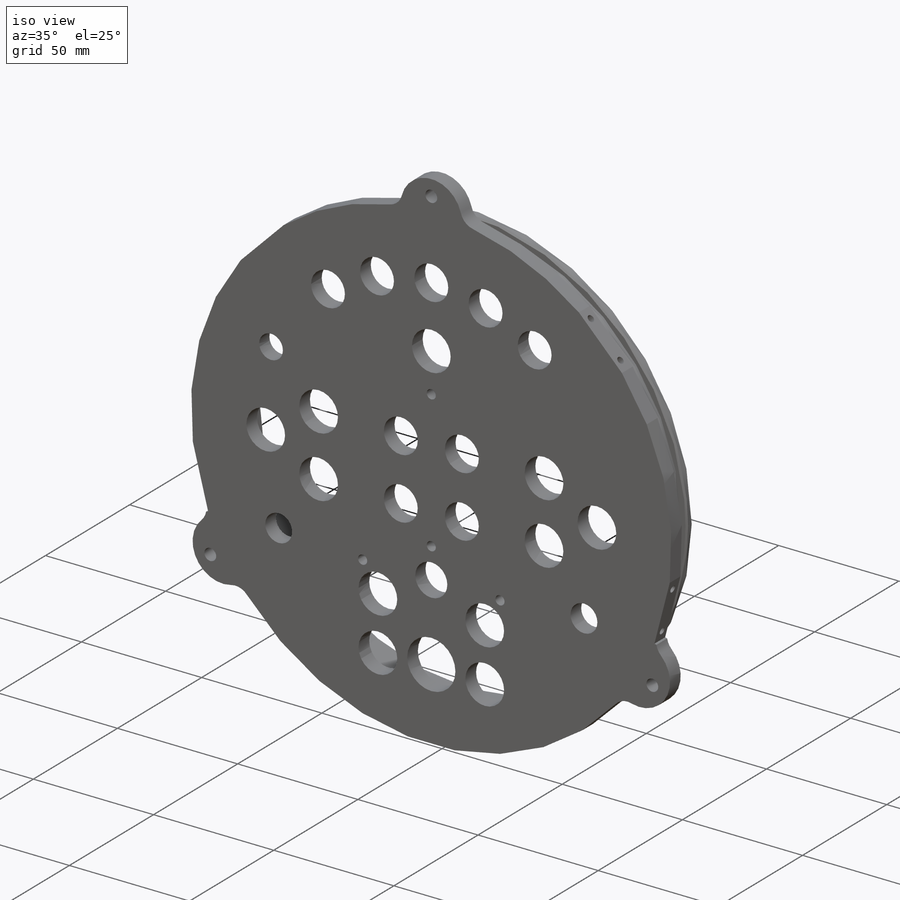
[diagram: iso view]
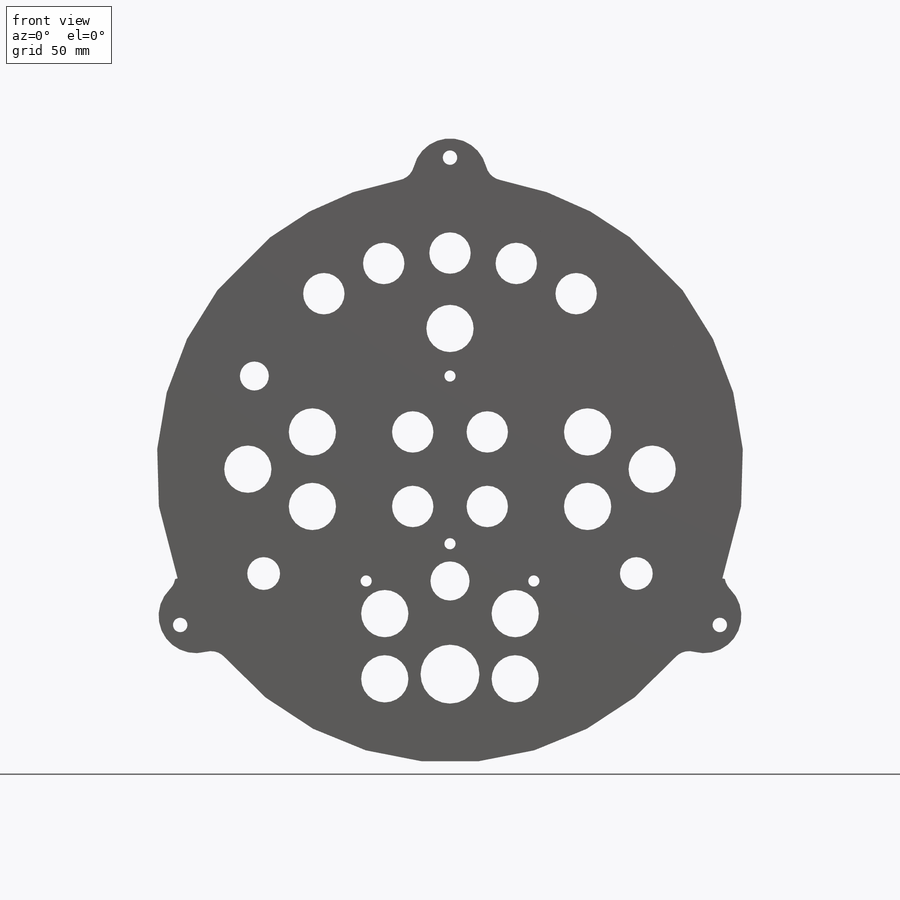
[diagram: front view]
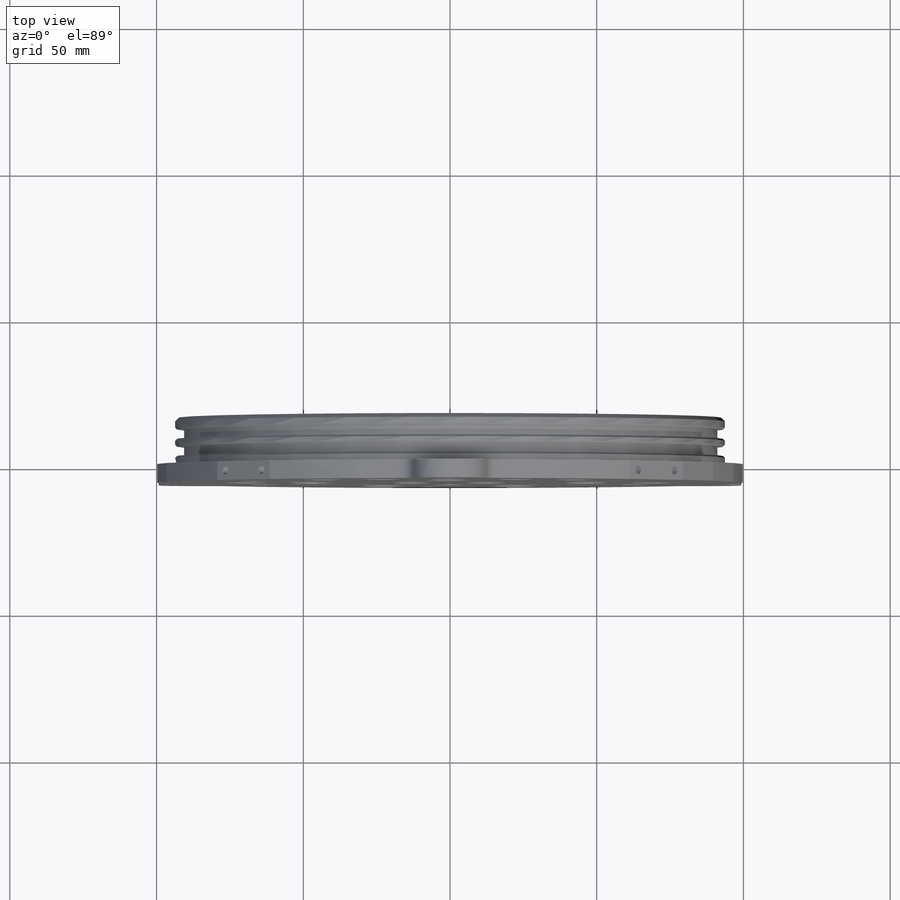
[diagram: top view]
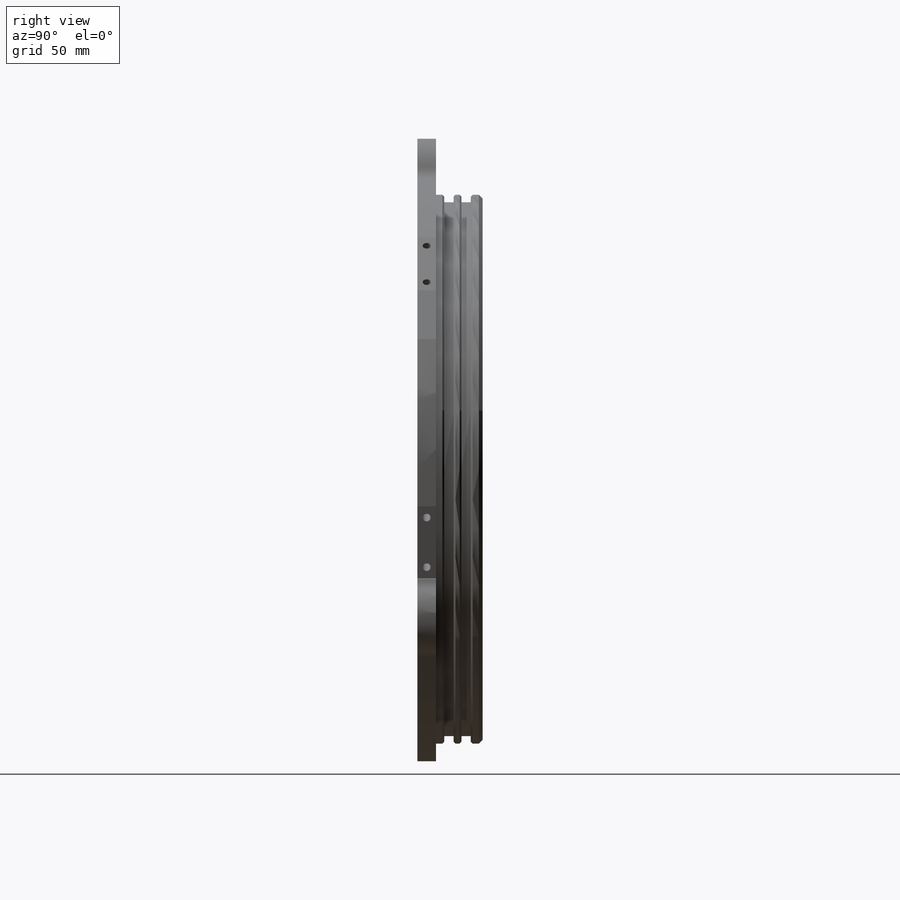
[diagram: right view]
SOLIDWORKS PART (.sldprt)
format: sldprt  version: not decoded by parser v0  size: 862,208 bytes
history: native  units: mm
features: sketch x26, hole x7, cut_extrude x6, extrude x3, chamfer x2, material x1, cut_revolve x1, fillet x1 (+11 scaffold rows collapsed)
feature tree (58):
  scaffold x11  (default folders/planes/origin — collapsed)
  material  "6061 Alloy"
  sketch  "Sketch1"  dims[D1=98.425mm]
  extrude  "Extrude1"  Depth=6.35mm
  sketch  "Sketch2"  dims[D1=88.9mm]
  extrude  "Extrude2"  Depth=15.875mm
  sketch  "Sketch3"  dims[D1=82.55mm]
  cut_extrude  "Cut-Extrude1"  Depth=15.875mm
  sketch  "Sketch4"  dims[D1=2.54mm D2=3.175mm]
  cut_revolve  "Cut-Revolve1"  Angle=360deg
  chamfer  "Chamfer1"  Distance=1.27mm Angle=45deg
  sketch  "Sketch5"  dims[c1.D1=~10.110031mm c1.D3=~8.083123mm c1.D5=~4.356395mm c2.D3=7.05mm c2.D1=50.8mm c2.D2=50.8mm c3.D3=38.1mm c3.D4=38.1mm c3.D5=38.1mm c3.D6=38.1mm c3.D1=31.75mm c3.D2=31.75mm c4.D3=31.75mm c4.D4=31.75mm c4.D2=31.75mm c5.D3=31.75mm c5.D2=31.75mm c5.D5=25.4mm c5.D6=25.4mm c5.D7=25.4mm c6.D5=25.4mm c6.D6=25.4mm c6.D8=25.4mm c6.D9=10.16mm c6.D2=57.15mm c6.D3=25.4mm c7.D5=57.15mm c7.D7=63.5mm c7.D8=79.375mm c7.D9=0.0deg c8.D9=31.75mm c8.D10=31.75mm c8.D11=~138.065664mm c9.D11=~179.835115deg c10.D11=31.75mm c10.D12=31.75mm c10.D1=63.5mm c10.D2=63.5mm c10.D3=73.66mm c10.D4=73.66mm c10.D5=35.56mm c10.D6=35.56mm]
  sketch  "Sketch7"
  sketch  "Sketch8"  dims[c1.D1=12.7mm c1.D2=12.7mm c1.D3=12.7mm c2.D1=30.0deg c2.D4=~86.562005mm c3.D4=120.0deg c3.D5=~86.562005mm c4.D5=120.0deg]
  extrude  "Extrude3"  [1 undecoded]
  sketch  "Sketch10"  dims[D1=30.0deg]
  cut_extrude  "Cut-Extrude2"  [1 undecoded]
  hole  "#10 (0.1935) Diameter Hole1"  Diameter=4.9149mm Depth=330.2mm
  sketch  "3DSketch2"  dims[D1=106.3625mm D2=106.3625mm D3=106.3625mm]
  sketch  "Sketch11"  dims[hole-wizard template sketch: 47 standard entries collapsed; hole parameters kept: c15.Hole Depth=330.2mm c15.D3=~14.816244mm c15.Drill Angle=118.0deg]
  chamfer  "Chamfer2"  Distance=0.635mm Angle=45deg
  sketch  "Sketch15"  dims[D1=69.85mm]
  cut_extrude  "Cut-Extrude3"  [1 undecoded]
  sketch  "Sketch17"  dims[c1.D1=25.4mm c1.D2=~22.284235mm c2.D1=25.4mm c2.D2=25.4mm c2.D3=25.4mm c2.D4=22.86mm]
  cut_extrude  "Cut-Extrude4"  [1 undecoded]
  hole  "#6 Clearance Hole1"  Diameter=3.7973mm Depth=12.7mm
  sketch  "3DSketch7"  dims[c1.D1=~54.264855mm c1.D3=57.15mm c1.D2=~42.004763mm c2.D1=28.575mm c2.D3=~33.442602mm c2.D4=38.1mm c3.D1=57.15mm c3.D2=28.575mm c3.D3=38.1mm]
  sketch  "Sketch18"  dims[hole-wizard template sketch: 50 standard entries collapsed; hole parameters above]
  hole  "Tap Drill for #6 Tap1"  Diameter=2.7051mm Depth=3.302mm
  sketch  "3DSketch8"  dims[c1.D1=9.525mm c1.D2=9.525mm c1.D3=69.85mm c1.D4=34.925mm c1.D5=29.21mm c1.D6=0.0mm c2.D6=88.9mm c2.D7=~57.133352mm c2.D9=50.8mm c2.D8=44.45mm c3.D7=52.705mm]
  sketch  "Sketch19"  dims[hole-wizard template sketch: 50 standard entries collapsed; hole parameters above]
  hole  "1/4 NPT Tapped Hole1"  Diameter=11.1252mm Depth=17.018mm
  sketch  "3DSketch9"  dims[D1=~25.468094mm D3=25.4mm D2=38.1mm]
  sketch  "Sketch20"  dims[hole-wizard template sketch: 50 standard entries collapsed; hole parameters kept: c13.Tap Drill Dia.=11.1252mm c13.Tap Drill Depth=17.018mm c13.Thread Dia.=~13.709167mm c13.D4=~22.362017mm c13.Thread Angle=3.43deg c13.Thread Depth=9.906mm c13.D6=~25.48394mm c13.Drill Angle=118.0deg]
  hole  "1/8 NPT Tapped Hole1"  Diameter=8.4328mm Depth=11.176mm
  sketch  "3DSketch6"  dims[c1.D1=~28.653762mm c1.D2=28.575mm c2.D1=~66.400835mm c2.D3=25.4mm c2.D2=~42.972162mm c3.D3=41.91mm c3.D2=~58.511886mm c4.D3=57.15mm c4.D1=~25.010304mm c4.D2=25.4mm c5.D1=31.75mm c5.D2=66.675mm]
  sketch  "Sketch16"  dims[hole-wizard template sketch: 51 standard entries collapsed; hole parameters kept: c13.Tap Drill Depth=11.176mm c13.Thread Dia.=~10.252634mm c13.D4=~22.362017mm c13.Thread Angle=3.43deg c13.Thread Depth=6.35mm c13.D6=~25.48394mm c13.Drill Angle=118.0deg]
  fillet  "Fillet1"  Radius=6.35mm
  sketch  "Sketch22"  dims[c1.D1=~68.530608mm c2.D1=45.164deg c2.D2=100.0125mm c3.D2=104.549deg c3.D3=25.4mm c3.D4=25.4mm c3.D5=12.7mm c3.D6=12.7mm]
  cut_extrude  "Cut-Extrude5"  [1 undecoded]
  hole  "Tap Drill for #6 Tap2"  Diameter=2.7051mm Depth=9.525mm
  sketch  "3DSketch11"  dims[D1=17.4625mm D2=~8.73125mm D3=17.4625mm D4=~8.73125mm D5=17.4625mm D6=~8.73125mm D7=17.4625mm D8=~8.73125mm]
  sketch  "Sketch23"  dims[hole-wizard template sketch: 47 standard entries collapsed; hole parameters kept: c15.Hole Depth=9.525mm c15.D3=~14.816244mm c15.Drill Angle=118.0deg]
  hole  "#6 Clearance Hole2"  Diameter=3.7973mm Depth=6.35mm
  sketch  "Sketch25"  dims[D1=57.15mm D2=31.75mm]
  sketch  "Sketch24"  dims[hole-wizard template sketch: 50 standard entries collapsed; hole parameters above]
  sketch  "Sketch26"  dims[D1=16.1mm D5=16.1mm D6=16.1mm D7=16.1mm D2=60.325mm D3=44.45mm D4=22.225mm]
  cut_extrude  "Cut-Extrude6"  [1 undecoded]
decode coverage: 39 of 46 modeling features carry decoded parameters
note: ~ marks probable driven/reference dimensions
note: 6 parameter values undecoded
summary: no parameter record found for 6 features; Diameter pulled from absorbed wizard sketch
note: suppression state not decoded; provenance and decode notes live in map.json
